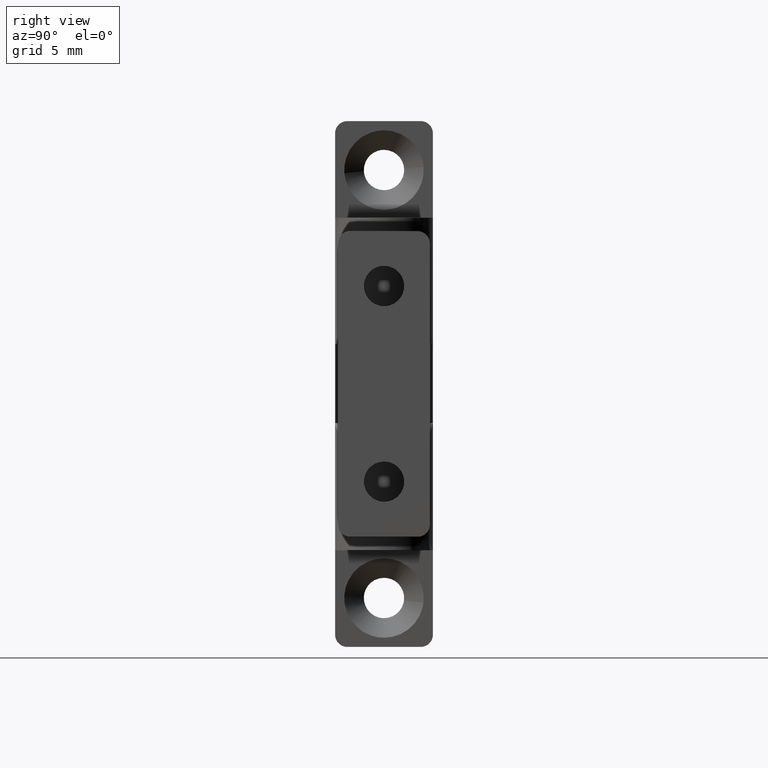
[diagram: clean part render]
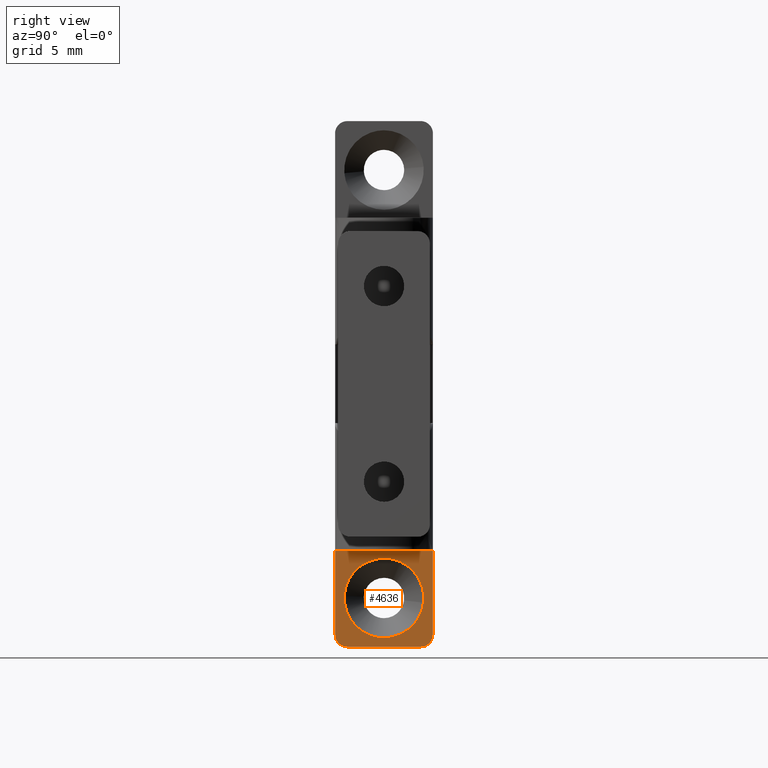
[diagram: same view with one face highlighted and labeled with its STEP entity id]
A machine part, right view. The second image highlights one B-rep face of the part: STEP entity #4636.
In plain terms, the highlighted face is a freeform B-spline surface patch.
Its self-contained STEP definition (entity closure, byte-faithful):
#3400=CARTESIAN_POINT('',(17.883611262849730,3.227280960683632,2.500000000027127));
#3401=VERTEX_POINT('',#3400);
#3407=CARTESIAN_POINT('',(14.250000000000000,0.0,2.500000000000000));
#3408=VERTEX_POINT('',#3407);
#3409=CARTESIAN_POINT('',(17.883611262849733,3.227280960683632,2.500000000027127));
#3410=CARTESIAN_POINT('',(17.692478389083014,3.250000000000000,2.500000000000000));
#3411=CARTESIAN_POINT('',(17.500000000000000,3.250000000000000,2.500000000000000));
#3412=CARTESIAN_POINT('',(14.249999999999998,3.250000000000000,2.500000000000000));
#3413=CARTESIAN_POINT('',(14.250000000000000,0.0,2.500000000000000));
#3421=(BOUNDED_CURVE()B_SPLINE_CURVE(2,(#3409,#3410,#3411,#3412,#3413),.UNSPECIFIED.,.F.,.U.)B_SPLINE_CURVE_WITH_KNOTS((3,2,3),(0.229562473493434,0.250000000000000,0.500000000000000),.UNSPECIFIED.)CURVE()GEOMETRIC_REPRESENTATION_ITEM()RATIONAL_B_SPLINE_CURVE((0.956026754144353,0.976055948307627,1.0,0.707106781186547,1.0))REPRESENTATION_ITEM(''));
#3422=EDGE_CURVE('',#3401,#3408,#3421,.T.);
#3424=CARTESIAN_POINT('',(17.301592246276879,-3.243938094887583,2.500000000030836));
#3425=VERTEX_POINT('',#3424);
#3426=CARTESIAN_POINT('',(14.250000000000000,0.0,2.500000000000000));
#3427=CARTESIAN_POINT('',(14.249999999999995,-3.057294717003595,2.500000000000000));
#3428=CARTESIAN_POINT('',(17.301592246276879,-3.243938094887583,2.500000000030836));
#3436=(BOUNDED_CURVE()B_SPLINE_CURVE(2,(#3426,#3427,#3428),.UNSPECIFIED.,.F.,.U.)B_SPLINE_CURVE_WITH_KNOTS((3,3),(0.500000000000000,0.739332962217187),.UNSPECIFIED.)CURVE()GEOMETRIC_REPRESENTATION_ITEM()RATIONAL_B_SPLINE_CURVE((1.0,0.719603993312199,0.976072041620091))REPRESENTATION_ITEM(''));
#3437=EDGE_CURVE('',#3408,#3425,#3436,.T.);
#3471=CARTESIAN_POINT('',(20.750000000000000,0.0,2.500000000000000));
#3472=VERTEX_POINT('',#3471);
#3473=CARTESIAN_POINT('',(17.301592246276879,-3.243938094887583,2.500000000030836));
#3474=CARTESIAN_POINT('',(17.400703519045972,-3.250000000000000,2.500000000000000));
#3475=CARTESIAN_POINT('',(17.500000000000000,-3.250000000000000,2.500000000000000));
#3476=CARTESIAN_POINT('',(20.750000000000000,-3.250000000000000,2.500000000000000));
#3477=CARTESIAN_POINT('',(20.750000000000000,0.0,2.500000000000000));
#3485=(BOUNDED_CURVE()B_SPLINE_CURVE(2,(#3473,#3474,#3475,#3476,#3477),.UNSPECIFIED.,.F.,.U.)B_SPLINE_CURVE_WITH_KNOTS((3,2,3),(0.739332962217186,0.750000000000000,1.0),.UNSPECIFIED.)CURVE()GEOMETRIC_REPRESENTATION_ITEM()RATIONAL_B_SPLINE_CURVE((0.976072041620089,0.987502787874348,1.0,0.707106781186547,1.0))REPRESENTATION_ITEM(''));
#3486=EDGE_CURVE('',#3425,#3472,#3485,.T.);
#3488=CARTESIAN_POINT('',(20.750000000000000,0.0,2.500000000000000));
#3489=CARTESIAN_POINT('',(20.749999999999996,2.886567208959923,2.500000000000000));
#3490=CARTESIAN_POINT('',(17.883611262849726,3.227280960683631,2.500000000027126));
#3498=(BOUNDED_CURVE()B_SPLINE_CURVE(2,(#3488,#3489,#3490),.UNSPECIFIED.,.F.,.U.)B_SPLINE_CURVE_WITH_KNOTS((3,3),(0.0,0.229562473493434),.UNSPECIFIED.)CURVE()GEOMETRIC_REPRESENTATION_ITEM()RATIONAL_B_SPLINE_CURVE((1.0,0.731050832878921,0.956026754144353))REPRESENTATION_ITEM(''));
#3499=EDGE_CURVE('',#3472,#3401,#3498,.T.);
#3887=CARTESIAN_POINT('',(21.500000000000000,3.0,2.500000000000000));
#3888=VERTEX_POINT('',#3887);
#3889=CARTESIAN_POINT('',(20.500000000000000,4.0,2.500000000000000));
#3890=VERTEX_POINT('',#3889);
#3891=CARTESIAN_POINT('',(21.500000000000000,3.0,2.500000000000000));
#3892=CARTESIAN_POINT('',(21.499999999999996,4.000000000000000,2.500000000000000));
#3893=CARTESIAN_POINT('',(20.500000000000000,4.0,2.500000000000000));
#3901=(BOUNDED_CURVE()B_SPLINE_CURVE(2,(#3891,#3892,#3893),.UNSPECIFIED.,.F.,.U.)CURVE()GEOMETRIC_REPRESENTATION_ITEM()QUASI_UNIFORM_CURVE()RATIONAL_B_SPLINE_CURVE((1.0,0.707106781186548,1.0))REPRESENTATION_ITEM(''));
#3902=EDGE_CURVE('',#3888,#3890,#3901,.T.);
#3948=CARTESIAN_POINT('',(20.500000000000000,-4.0,2.500000000000000));
#3949=VERTEX_POINT('',#3948);
#3950=CARTESIAN_POINT('',(21.500000000000000,-3.0,2.500000000000000));
#3951=VERTEX_POINT('',#3950);
#3952=CARTESIAN_POINT('',(20.500000000000000,-4.0,2.500000000000000));
#3953=CARTESIAN_POINT('',(21.499999999999996,-4.000000000000000,2.500000000000000));
#3954=CARTESIAN_POINT('',(21.500000000000000,-3.0,2.500000000000000));
#3962=(BOUNDED_CURVE()B_SPLINE_CURVE(2,(#3952,#3953,#3954),.UNSPECIFIED.,.F.,.U.)CURVE()GEOMETRIC_REPRESENTATION_ITEM()QUASI_UNIFORM_CURVE()RATIONAL_B_SPLINE_CURVE((1.0,0.707106781186548,1.0))REPRESENTATION_ITEM(''));
#3963=EDGE_CURVE('',#3949,#3951,#3962,.T.);
#4485=CARTESIAN_POINT('',(13.600000000000000,4.0,2.500000000000000));
#4486=VERTEX_POINT('',#4485);
#4492=CARTESIAN_POINT('',(13.600000000000000,4.0,2.500000000000000));
#4493=CARTESIAN_POINT('',(20.500000000000000,4.0,2.500000000000000));
#4494=QUASI_UNIFORM_CURVE('',1,(#4492,#4493),.UNSPECIFIED.,.F.,.U.);
#4495=EDGE_CURVE('',#4486,#3890,#4494,.T.);
#4520=CARTESIAN_POINT('',(13.600000000000000,-4.0,2.500000000000000));
#4521=VERTEX_POINT('',#4520);
#4522=CARTESIAN_POINT('',(13.600000000000000,-4.0,2.500000000000000));
#4523=CARTESIAN_POINT('',(20.500000000000000,-4.0,2.500000000000000));
#4524=QUASI_UNIFORM_CURVE('',1,(#4522,#4523),.UNSPECIFIED.,.F.,.U.);
#4525=EDGE_CURVE('',#4521,#3949,#4524,.T.);
#4602=CARTESIAN_POINT('',(21.500000000000000,-3.0,2.500000000000000));
#4603=CARTESIAN_POINT('',(21.500000000000000,3.0,2.500000000000000));
#4604=QUASI_UNIFORM_CURVE('',1,(#4602,#4603),.UNSPECIFIED.,.F.,.U.);
#4605=EDGE_CURVE('',#3951,#3888,#4604,.T.);
#4613=CARTESIAN_POINT('',(13.205395386109471,-4.399599984494448,2.500000000000000));
#4614=CARTESIAN_POINT('',(21.894605178942559,-4.399599984494448,2.500000000000000));
#4615=CARTESIAN_POINT('',(13.205395386109471,4.399600199071169,2.500000000000000));
#4616=CARTESIAN_POINT('',(21.894605178942559,4.399600199071169,2.500000000000000));
#4617=B_SPLINE_SURFACE_WITH_KNOTS('',1,1,((#4613,#4615),(#4614,#4616)),.UNSPECIFIED.,.F.,.F.,.U.,(2,2),(2,2),(0.0,8.689209792833090),(0.0,8.799200183565617),.UNSPECIFIED.);
#4618=ORIENTED_EDGE('',*,*,#4525,.T.);
#4619=ORIENTED_EDGE('',*,*,#3963,.T.);
#4620=ORIENTED_EDGE('',*,*,#4605,.T.);
#4621=ORIENTED_EDGE('',*,*,#3902,.T.);
#4622=ORIENTED_EDGE('',*,*,#4495,.F.);
#4623=CARTESIAN_POINT('',(13.600000000000000,-4.0,2.500000000000000));
#4624=CARTESIAN_POINT('',(13.600000000000000,4.0,2.500000000000000));
#4625=QUASI_UNIFORM_CURVE('',1,(#4623,#4624),.UNSPECIFIED.,.F.,.U.);
#4626=EDGE_CURVE('',#4521,#4486,#4625,.T.);
#4627=ORIENTED_EDGE('',*,*,#4626,.F.);
#4628=EDGE_LOOP('',(#4618,#4619,#4620,#4621,#4622,#4627));
#4629=FACE_OUTER_BOUND('',#4628,.T.);
#4630=ORIENTED_EDGE('',*,*,#3437,.F.);
#4631=ORIENTED_EDGE('',*,*,#3422,.F.);
#4632=ORIENTED_EDGE('',*,*,#3499,.F.);
#4633=ORIENTED_EDGE('',*,*,#3486,.F.);
#4634=EDGE_LOOP('',(#4630,#4631,#4632,#4633));
#4635=FACE_BOUND('',#4634,.T.);
#4636=ADVANCED_FACE('',(#4629,#4635),#4617,.T.);